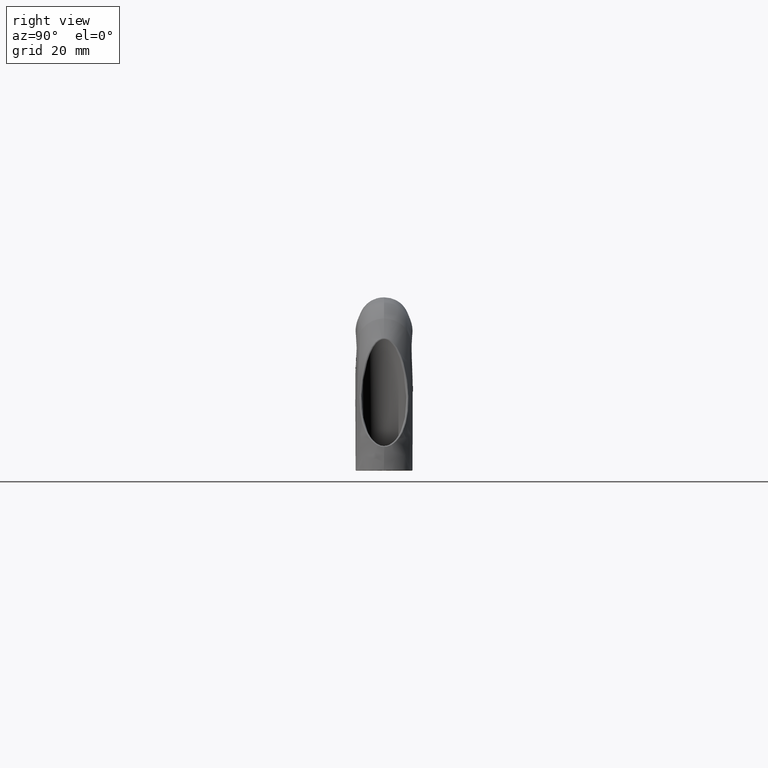
[diagram: clean part render]
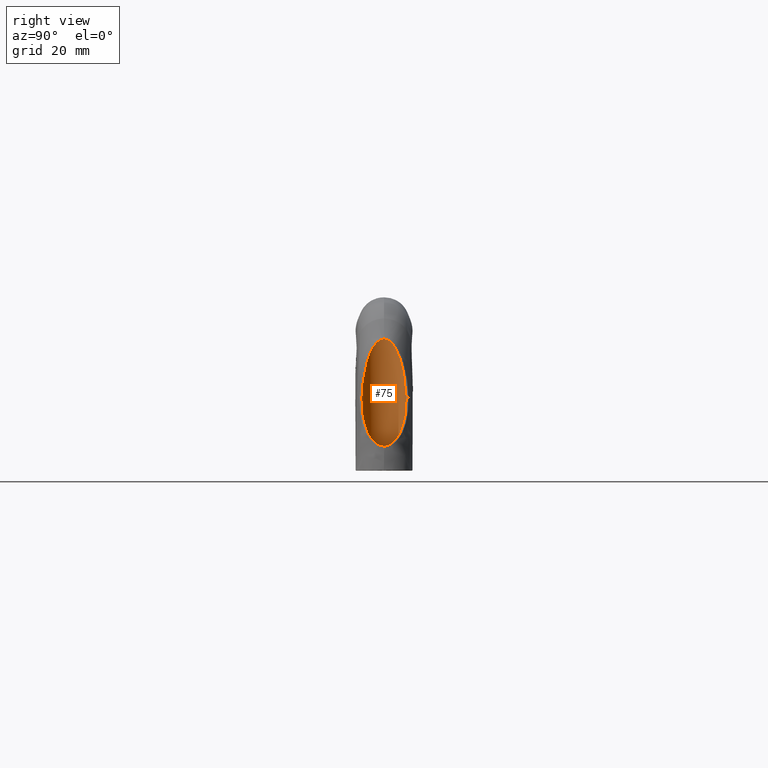
[diagram: same view with one face highlighted and labeled with its STEP entity id]
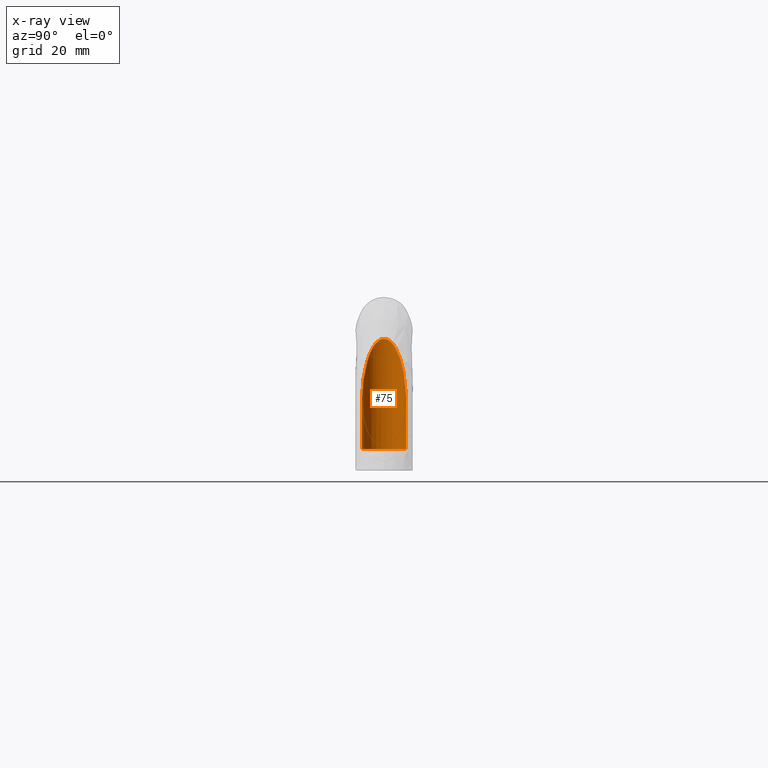
[diagram: x-ray of the same camera — body ghosted, the highlighted face saturated]
A machine part, right view. The second image highlights one B-rep face of the part: STEP entity #75.
The next image is the same camera in x-ray: the body ghosted, the highlighted face saturated — about 0% of this face is hidden behind the body in this view.
In plain terms, the highlighted cylindrical surface (edge-blend (fillet) strip) has radius 8.15 mm, axis along (-0, -0, 1).
Its self-contained STEP definition (entity closure, byte-faithful):
#75=ADVANCED_FACE('',(#458),#457,.F.);
#457=CYLINDRICAL_SURFACE('',#5478,8.15000000000E+00);
#458=FACE_OUTER_BOUND('',#5479,.T.);
#5475=CARTESIAN_POINT('',(1.15000000363E+02,-1.20000000040E+01,-3.69289493561E+00));
#5476=DIRECTION('',(-0.00000000000E+00,-0.00000000000E+00,1.00000000000E+00));
#5477=DIRECTION('',(1.00000000000E+00,-1.22464679915E-16,0.00000000000E+00));
#5478=AXIS2_PLACEMENT_3D('',#5475,#5476,#5477);
#5479=EDGE_LOOP('',(#7580,#7581,#7582,#7583,#7584));
#7580=ORIENTED_EDGE('',*,*,#7811,.F.);
#7581=ORIENTED_EDGE('',*,*,#7812,.F.);
#7582=ORIENTED_EDGE('',*,*,#7813,.F.);
#7583=ORIENTED_EDGE('',*,*,#7814,.F.);
#7584=ORIENTED_EDGE('',*,*,#7815,.F.);
#7811=EDGE_CURVE('',#8476,#7908,#8547,.T.);
#7812=EDGE_CURVE('',#8553,#8476,#8554,.T.);
#7813=EDGE_CURVE('',#8560,#8553,#8561,.T.);
#7814=EDGE_CURVE('',#7907,#8560,#8567,.T.);
#7815=EDGE_CURVE('',#7908,#7907,#8573,.T.);
#7907=VERTEX_POINT('',#8883);
#7908=VERTEX_POINT('',#8884);
#8476=VERTEX_POINT('',#10132);
#8547=LINE('',#10276,#10277);
#8553=VERTEX_POINT('',#10279);
#8554=(BOUNDED_CURVE() B_SPLINE_CURVE(3,(#10280,#10281,#10282,#10283,#10284,#10285,#10286,#10287,#10288,#10289,#10290,#10291,#10292,#10293,#10294,#10295,#10296,#10297,#10298,#10299,#10300,#10301,#10302,#10303,#10304,#10305),.UNSPECIFIED.,.F.,.F.) B_SPLINE_CURVE_WITH_KNOTS((4,2,2,2,2,2,2,2,2,2,2,2,4),(0.00000000000E+00,8.18737522995E-01,1.63747504589E+00,2.45621256888E+00,3.27495009188E+00,4.91242513777E+00,6.54990018366E+00,9.82485027554E+00,1.30998003674E+01,1.63747504593E+01,1.96497005511E+01,2.29246506430E+01,2.61996007348E+01),.UNSPECIFIED.) CURVE() GEOMETRIC_REPRESENTATION_ITEM() RATIONAL_B_SPLINE_CURVE((1.00000000000E+00,1.00000000000E+00,1.00000000000E+00,1.00000000000E+00,1.00000000000E+00,1.00000000000E+00,1.00000000000E+00,1.00000000000E+00,1.00000000000E+00,1.00000000000E+00,1.00000000000E+00,1.00000000000E+00,1.00000000000E+00,1.00000000000E+00,1.00000000000E+00,1.00000000000E+00,1.00000000000E+00,1.00000000000E+00,1.00000000000E+00,1.00000000000E+00,1.00000000000E+00,1.00000000000E+00,1.00000000000E+00,1.00000000000E+00,1.00000000000E+00,1.00000000000E+00)) REPRESENTATION_ITEM('') );
#8560=VERTEX_POINT('',#10306);
#8561=(BOUNDED_CURVE() B_SPLINE_CURVE(3,(#10307,#10308,#10309,#10310,#10311,#10312,#10313,#10314,#10315,#10316,#10317,#10318,#10319,#10320,#10321,#10322,#10323,#10324,#10325,#10326,#10327,#10328,#10329,#10330,#10331,#10332,#10333,#10334),.UNSPECIFIED.,.F.,.F.) B_SPLINE_CURVE_WITH_KNOTS((4,2,2,2,2,2,2,2,2,2,2,2,2,4),(0.00000000000E+00,3.27475017117E+00,6.54950034243E+00,9.82425051360E+00,1.30990006848E+01,1.63737508560E+01,1.96485010272E+01,2.12858761128E+01,2.21045636556E+01,2.29232511984E+01,2.37419387412E+01,2.45606262840E+01,2.53793138268E+01,2.61980013696E+01),.UNSPECIFIED.) CURVE() GEOMETRIC_REPRESENTATION_ITEM() RATIONAL_B_SPLINE_CURVE((1.00000000000E+00,1.00000000000E+00,1.00000000000E+00,1.00000000000E+00,1.00000000000E+00,1.00000000000E+00,1.00000000000E+00,1.00000000000E+00,1.00000000000E+00,1.00000000000E+00,1.00000000000E+00,1.00000000000E+00,1.00000000000E+00,1.00000000000E+00,1.00000000000E+00,1.00000000000E+00,1.00000000000E+00,1.00000000000E+00,1.00000000000E+00,1.00000000000E+00,1.00000000000E+00,1.00000000000E+00,1.00000000000E+00,1.00000000000E+00,1.00000000000E+00,1.00000000000E+00,1.00000000000E+00,1.00000000000E+00)) REPRESENTATION_ITEM('') );
#8567=LINE('',#10335,#10336);
#8573=CIRCLE('',#10341,8.15000000000E+00);
#8883=CARTESIAN_POINT('',(1.15000000363E+02,-2.01500000040E+01,-2.39999999950E+01));
#8884=CARTESIAN_POINT('',(1.15000000363E+02,-3.85000000399E+00,-2.39999999950E+01));
#10132=CARTESIAN_POINT('',(1.15000000363E+02,-3.85000000399E+00,-5.31924055301E+00));
#10276=CARTESIAN_POINT('',(1.15000000363E+02,-3.85000000399E+00,-5.31924055301E+00));
#10277=VECTOR('',#10278,1.86807594420E+01);
#10278=DIRECTION('',(0.00000000000E+00,0.00000000000E+00,-1.00000000000E+00));
#10279=CARTESIAN_POINT('',(1.06850000363E+02,-1.19999988758E+01,1.66142096082E+01));
#10280=CARTESIAN_POINT('',(1.06850000363E+02,-1.19999988758E+01,1.66142096082E+01));
#10281=CARTESIAN_POINT('',(1.06850000401E+02,-1.17208253200E+01,1.66142106906E+01));
#10282=CARTESIAN_POINT('',(1.06864619366E+02,-1.14448208010E+01,1.65731159606E+01));
#10283=CARTESIAN_POINT('',(1.06917830362E+02,-1.09177911511E+01,1.64233155140E+01));
#10284=CARTESIAN_POINT('',(1.06956935957E+02,-1.06620604709E+01,1.63131477434E+01));
#10285=CARTESIAN_POINT('',(1.07050403084E+02,-1.01875788821E+01,1.60492810855E+01));
#10286=CARTESIAN_POINT('',(1.07105055153E+02,-9.96525767391E+00,1.58947619901E+01));
#10287=CARTESIAN_POINT('',(1.07225549406E+02,-9.54475082434E+00,1.55532797895E+01));
#10288=CARTESIAN_POINT('',(1.07290183531E+02,-9.35062883215E+00,1.53697408585E+01));
#10289=CARTESIAN_POINT('',(1.07493244893E+02,-8.80267376729E+00,1.47917544198E+01));
#10290=CARTESIAN_POINT('',(1.07641171635E+02,-8.48168555768E+00,1.43689202274E+01));
#10291=CARTESIAN_POINT('',(1.07948947203E+02,-7.89956757277E+00,1.34851518197E+01));
#10292=CARTESIAN_POINT('',(1.08106847276E+02,-7.64248538099E+00,1.30298591208E+01));
#10293=CARTESIAN_POINT('',(1.08587961602E+02,-6.93717158295E+00,1.16378334530E+01));
#10294=CARTESIAN_POINT('',(1.08918385565E+02,-6.55375815672E+00,1.06753677070E+01));
#10295=CARTESIAN_POINT('',(1.09591406156E+02,-5.88487960293E+00,8.71199095599E+00));
#10296=CARTESIAN_POINT('',(1.09934777591E+02,-5.60109678150E+00,7.70876620199E+00));
#10297=CARTESIAN_POINT('',(1.10626459337E+02,-5.10981981245E+00,5.70226593199E+00));
#10298=CARTESIAN_POINT('',(1.10976021616E+02,-4.90141153372E+00,4.69514184499E+00));
#10299=CARTESIAN_POINT('',(1.11690168425E+02,-4.54162378893E+00,2.67856244299E+00));
#10300=CARTESIAN_POINT('',(1.12054614309E+02,-4.39036623431E+00,1.66903614699E+00));
#10301=CARTESIAN_POINT('',(1.12812307728E+02,-4.13896788044E+00,-3.46178434012E-01));
#10302=CARTESIAN_POINT('',(1.13205178722E+02,-4.03863305870E+00,-1.35198456501E+00));
#10303=CARTESIAN_POINT('',(1.14046768292E+02,-3.89468711798E+00,-3.35010573501E+00));
#10304=CARTESIAN_POINT('',(1.14494267704E+02,-3.85000000399E+00,-4.34273844501E+00));
#10305=CARTESIAN_POINT('',(1.15000000363E+02,-3.85000000399E+00,-5.31924055301E+00));
#10306=CARTESIAN_POINT('',(1.15000000363E+02,-2.01500000040E+01,-5.31924055301E+00));
#10307=CARTESIAN_POINT('',(1.15000000363E+02,-2.01500000040E+01,-5.31924055301E+00));
#10308=CARTESIAN_POINT('',(1.14496025621E+02,-2.01500000040E+01,-4.34613274801E+00));
#10309=CARTESIAN_POINT('',(1.14048705930E+02,-2.01055544956E+01,-3.35450679101E+00));
#10310=CARTESIAN_POINT('',(1.13206564117E+02,-1.99616933633E+01,-1.35547234501E+00));
#10311=CARTESIAN_POINT('',(1.12812867207E+02,-1.98612506363E+01,-3.47710489012E-01));
#10312=CARTESIAN_POINT('',(1.12052848198E+02,-1.96090148588E+01,1.67377751599E+00));
#10313=CARTESIAN_POINT('',(1.11686886640E+02,-1.94570395580E+01,2.68763155699E+00));
#10314=CARTESIAN_POINT('',(1.10968991038E+02,-1.90947251767E+01,4.71519523899E+00));
#10315=CARTESIAN_POINT('',(1.10618430695E+02,-1.88849994681E+01,5.72546111199E+00));
#10316=CARTESIAN_POINT('',(1.09929313655E+02,-1.83944903422E+01,7.72471353999E+00));
#10317=CARTESIAN_POINT('',(1.09590396196E+02,-1.81139772258E+01,8.71493443099E+00));
#10318=CARTESIAN_POINT('',(1.08921817946E+02,-1.74497920385E+01,1.06653573880E+01));
#10319=CARTESIAN_POINT('',(1.08591976770E+02,-1.70682734513E+01,1.16261905420E+01));
#10320=CARTESIAN_POINT('',(1.08107823622E+02,-1.63591645235E+01,1.30270469424E+01));
#10321=CARTESIAN_POINT('',(1.07947764134E+02,-1.60983570226E+01,1.34885560347E+01));
#10322=CARTESIAN_POINT('',(1.07717385688E+02,-1.56623817456E+01,1.41500702710E+01));
#10323=CARTESIAN_POINT('',(1.07642067672E+02,-1.55093120607E+01,1.43658736982E+01));
#10324=CARTESIAN_POINT('',(1.07495296291E+02,-1.51833726476E+01,1.47854938248E+01));
#10325=CARTESIAN_POINT('',(1.07423865679E+02,-1.50104353367E+01,1.49892398157E+01));
#10326=CARTESIAN_POINT('',(1.07288538732E+02,-1.46445977345E+01,1.53744154425E+01));
#10327=CARTESIAN_POINT('',(1.07224354361E+02,-1.44512052311E+01,1.55566679823E+01));
#10328=CARTESIAN_POINT('',(1.07105522817E+02,-1.40362470614E+01,1.58934351936E+01));
#10329=CARTESIAN_POINT('',(1.07050344259E+02,-1.38122813970E+01,1.60494477972E+01));
#10330=CARTESIAN_POINT('',(1.06956595413E+02,-1.33360512093E+01,1.63141084859E+01));
#10331=CARTESIAN_POINT('',(1.06918285631E+02,-1.30861141218E+01,1.64220334783E+01));
#10332=CARTESIAN_POINT('',(1.06864535369E+02,-1.25549470545E+01,1.65733527825E+01));
#10333=CARTESIAN_POINT('',(1.06850000324E+02,-1.22791253953E+01,1.66142107926E+01));
#10334=CARTESIAN_POINT('',(1.06850000363E+02,-1.19999988758E+01,1.66142096082E+01));
#10335=CARTESIAN_POINT('',(1.15000000363E+02,-2.01500000040E+01,-2.39999999950E+01));
#10336=VECTOR('',#10337,1.86807594420E+01);
#10337=DIRECTION('',(0.00000000000E+00,0.00000000000E+00,1.00000000000E+00));
#10338=CARTESIAN_POINT('',(1.15000000363E+02,-1.20000000040E+01,-2.39999999950E+01));
#10339=DIRECTION('',(0.00000000000E+00,-0.00000000000E+00,1.00000000000E+00));
#10340=DIRECTION('',(-0.00000000000E+00,-1.00000000000E+00,-0.00000000000E+00));
#10341=AXIS2_PLACEMENT_3D('',#10338,#10339,#10340);